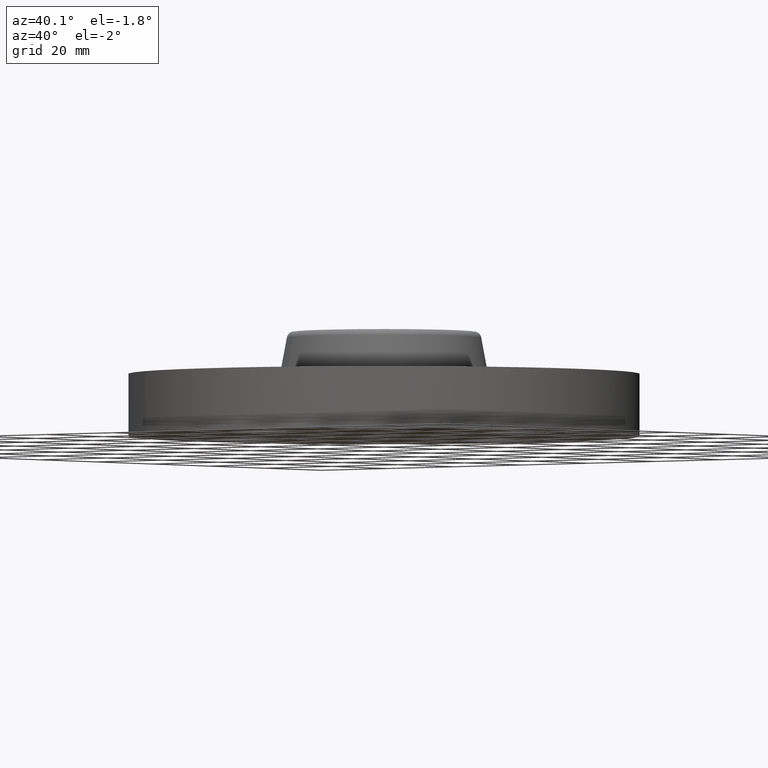
[diagram: clean part render]
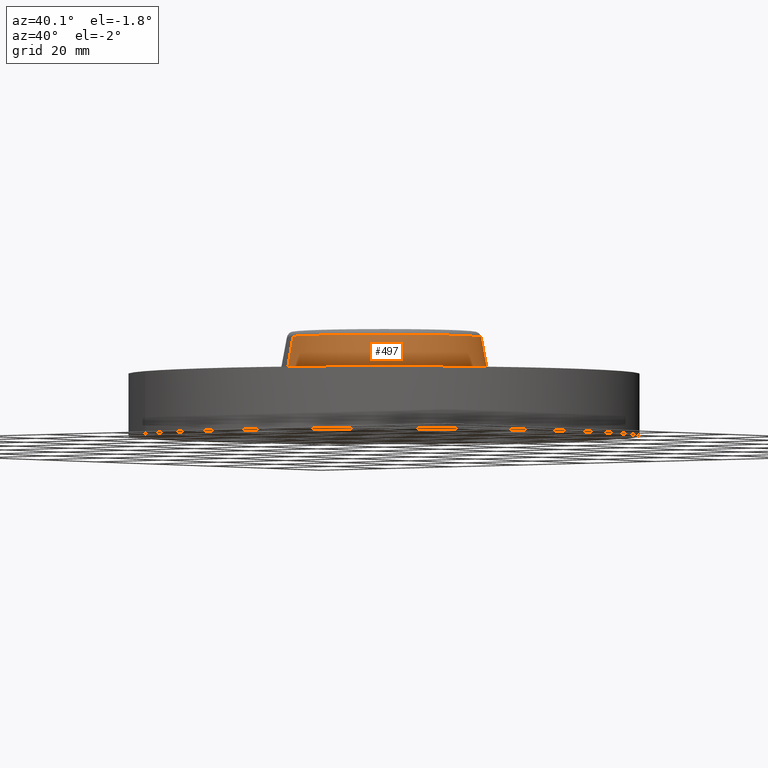
[diagram: same view with one face highlighted and labeled with its STEP entity id]
A machine part, auxiliary view. The second image highlights one B-rep face of the part: STEP entity #497.
In plain terms, the highlighted conical surface has half-angle 10 deg.
Its self-contained STEP definition (entity closure, byte-faithful):
#310=AXIS2_PLACEMENT_3D('Circle Axis2P3D',#308,#309,$) ;
#470=AXIS2_PLACEMENT_3D('Cone Axis2P3D',#467,#468,#469) ;
#474=AXIS2_PLACEMENT_3D('Circle Axis2P3D',#472,#473,$) ;
#308=CARTESIAN_POINT('Axis2P3D Location',(0.,0.,0.890418890664)) ;
#312=CARTESIAN_POINT('Vertex',(0.422727828052,0.773798098875,0.890418890664)) ;
#314=CARTESIAN_POINT('Vertex',(-0.422727828052,-0.773798098876,0.890418890664)) ;
#467=CARTESIAN_POINT('Axis2P3D Location',(0.,0.,0.890418890664)) ;
#472=CARTESIAN_POINT('Axis2P3D Location',(0.,0.,0.609581109342)) ;
#476=CARTESIAN_POINT('Vertex',(0.446468634603,0.81725535377,0.609581109342)) ;
#478=CARTESIAN_POINT('Vertex',(-0.446468634603,-0.81725535377,0.609581109342)) ;
#481=CARTESIAN_POINT('Line Origine',(0.434598231328,0.795526726322,0.750000000002)) ;
#486=CARTESIAN_POINT('Line Origine',(-0.434598231328,-0.795526726322,0.750000000002)) ;
#309=DIRECTION('Axis2P3D Direction',(-0.,0.,-0.0393700787402)) ;
#468=DIRECTION('Axis2P3D Direction',(0.,0.,-0.0393700787402)) ;
#469=DIRECTION('Axis2P3D XDirection',(0.0188750212049,0.0345504945626,0.)) ;
#473=DIRECTION('Axis2P3D Direction',(-0.,0.,-0.0393700787402)) ;
#482=DIRECTION('Vector Direction',(0.00327761303565,0.00599963041827,-0.03877195878)) ;
#487=DIRECTION('Vector Direction',(-0.00327761303565,-0.00599963041827,-0.03877195878)) ;
#483=VECTOR('Line Direction',#482,0.0393700787402) ;
#488=VECTOR('Line Direction',#487,0.0393700787402) ;
#492=ORIENTED_EDGE('',*,*,#480,.F.) ;
#493=ORIENTED_EDGE('',*,*,#485,.T.) ;
#494=ORIENTED_EDGE('',*,*,#316,.T.) ;
#495=ORIENTED_EDGE('',*,*,#490,.F.) ;
#497=ADVANCED_FACE('PartBody',(#496),#471,.T.) ;
#311=CIRCLE('generated circle',#310,0.881738234644) ;
#475=CIRCLE('generated circle',#474,0.931257512693) ;
#471=CONICAL_SURFACE('Cone',#470,0.881738234644,0.174532925199) ;
#316=EDGE_CURVE('',#313,#315,#311,.T.) ;
#480=EDGE_CURVE('',#477,#479,#475,.T.) ;
#485=EDGE_CURVE('',#477,#313,#484,.F.) ;
#490=EDGE_CURVE('',#479,#315,#489,.F.) ;
#491=EDGE_LOOP('',(#492,#493,#494,#495)) ;
#496=FACE_OUTER_BOUND('',#491,.T.) ;
#484=LINE('Line',#481,#483) ;
#489=LINE('Line',#486,#488) ;
#313=VERTEX_POINT('',#312) ;
#315=VERTEX_POINT('',#314) ;
#477=VERTEX_POINT('',#476) ;
#479=VERTEX_POINT('',#478) ;